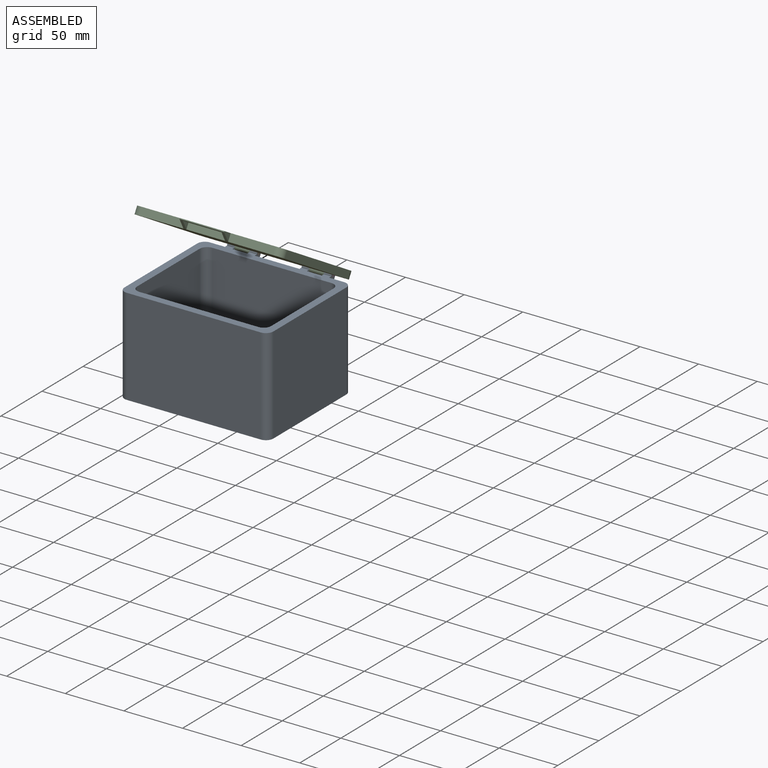
[diagram: assembled view]
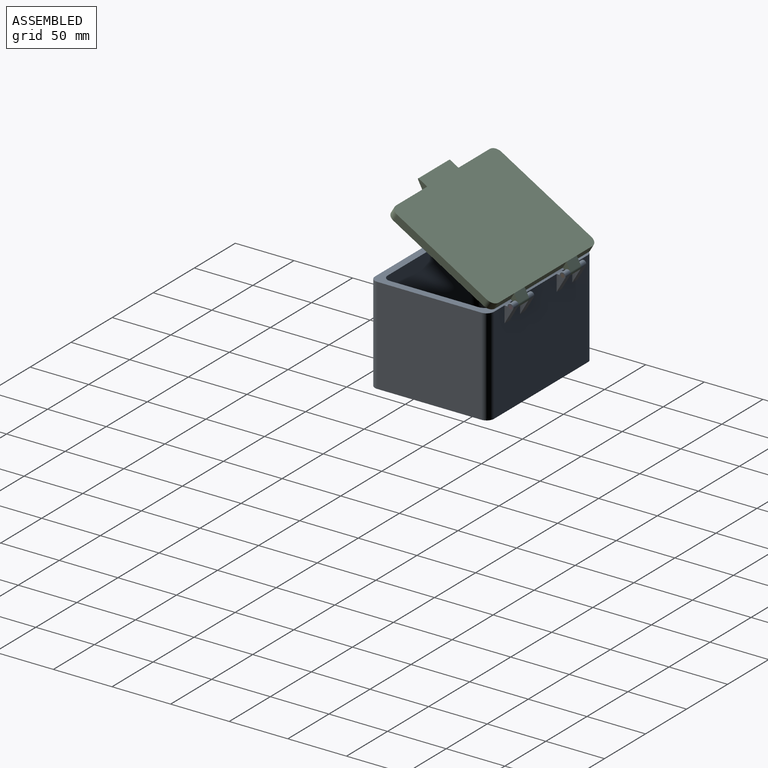
[diagram: assembled view, second angle]
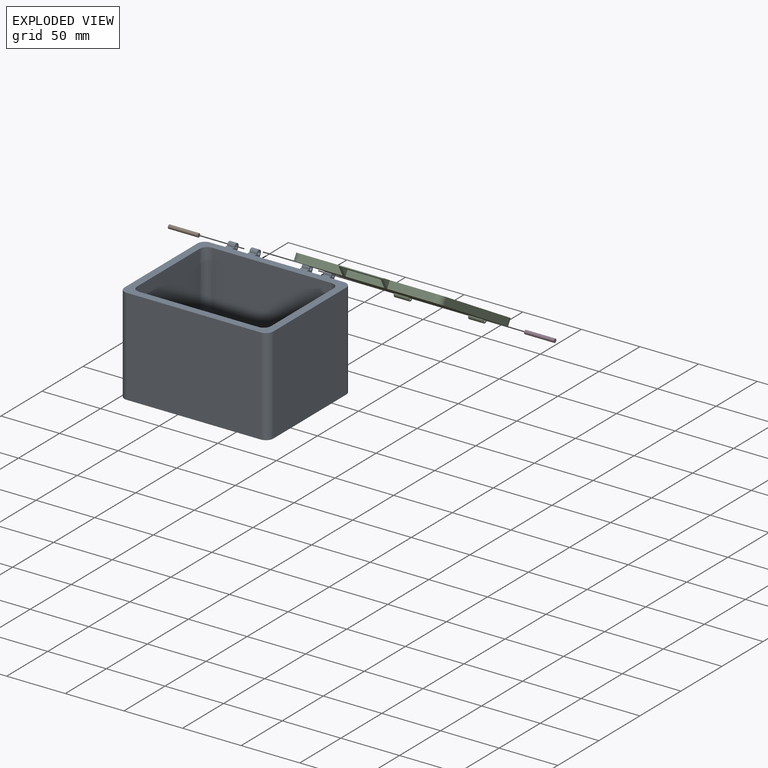
[diagram: exploded view]
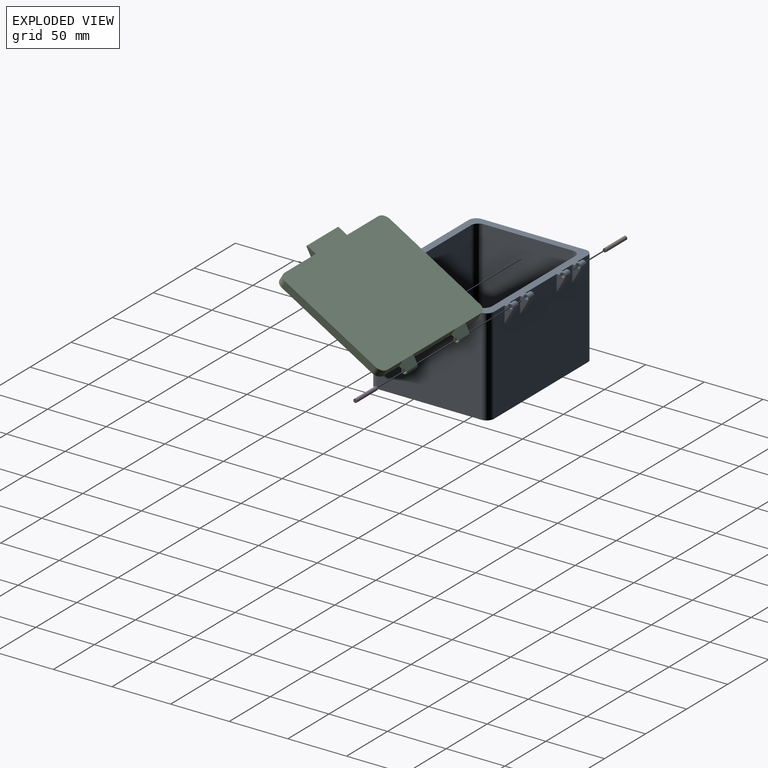
[diagram: exploded view, second angle]
ASSEMBLY  parts=4 mates=3
PART A: 39 faces, bbox 127x109.2x85.1 mm
  f0: plane 127x104.14mm, normal (0,0,1), area 2806.4mm2, adj f2,f4,f5,f6,f7,f8,f9,f11
  f1: plane 12.61x7.28mm, normal (0,0.87,-0.5), area 92.5mm2, adj f2,f4,f5,f6
  f2: cylinder r=2.54mm len=6.35mm, axis (-1,0,0), area 59.1mm2, adj f0,f1,f4,f5
  f3: cylinder r=1.59mm len=6.35mm, axis (-1,0,0), area 63.3mm2, adj f4,f5
  f4: plane 16.42x7.62mm, normal (1,0,0), area 57.6mm2, adj f0,f1,f2,f3,f6
  f5: plane 16.42x7.62mm, normal (-1,0,0), area 57.6mm2, adj f0,f1,f2,f3,f6
  f6: plane 114.3x82.55mm, normal (0,1,0), area 9082.9mm2, adj f0,f1,f4,f5,f10,f21,f22,f24
  f7: plane 114.3x82.55mm, normal (0,-1,0), area 9435.5mm2, adj f0,f10,f20,f23
  f8: plane 88.9x82.55mm, normal (1,0,0), area 7338.7mm2, adj f0,f10,f20,f21
  f9: plane 88.9x82.55mm, normal (-1,0,0), area 7338.7mm2, adj f0,f10,f22,f23
  f10: plane 127x101.6mm, normal (0,0,-1), area 12868.6mm2, adj f6,f7,f8,f9,f20,f21,f22,f23
  f11: plane 101.6x76.2mm, normal (0,1,0), area 7741.9mm2, adj f0,f15,f16,f19
  f12: plane 76.2x76.2mm, normal (1,0,0), area 5806.4mm2, adj f0,f15,f16,f17
  f13: plane 101.6x76.2mm, normal (0,-1,0), area 7741.9mm2, adj f0,f15,f17,f18
  f14: plane 76.2x76.2mm, normal (-1,0,0), area 5806.4mm2, adj f0,f15,f18,f19
  f15: plane 114.3x88.9mm, normal (0,0,1), area 10126.7mm2, adj f11,f12,f13,f14,f16,f17,f18,f19
  f16: cylinder r=6.35mm len=76.2mm, axis (0,0,1), area 760.1mm2, adj f0,f11,f12,f15
  f17: cylinder r=6.35mm len=76.2mm, axis (0,0,-1), area 760.1mm2, adj f0,f12,f13,f15
  f18: cylinder r=6.35mm len=76.2mm, axis (0,0,1), area 760.1mm2, adj f0,f13,f14,f15
  f19: cylinder r=6.35mm len=76.2mm, axis (0,0,-1), area 760.1mm2, adj f0,f11,f14,f15
  f20: cylinder r=6.35mm len=82.55mm, axis (0,0,-1), area 823.4mm2, adj f0,f7,f8,f10
  f21: cylinder r=6.35mm len=82.55mm, axis (0,0,1), area 823.4mm2, adj f0,f6,f8,f10
  f22: cylinder r=6.35mm len=82.55mm, axis (0,0,-1), area 823.4mm2, adj f0,f6,f9,f10
  f23: cylinder r=6.35mm len=82.55mm, axis (0,0,1), area 823.4mm2, adj f0,f7,f9,f10
  f24: plane 12.61x7.28mm, normal (0,0.87,-0.5), area 92.5mm2, adj f6,f25,f27,f28
  f25: cylinder r=2.54mm len=6.35mm, axis (1,0,0), area 59.1mm2, adj f0,f24,f27,f28
  f26: cylinder r=1.59mm len=6.35mm, axis (1,0,0), area 63.3mm2, adj f27,f28
  f27: plane 16.42x7.62mm, normal (-1,0,0), area 57.6mm2, adj f0,f6,f24,f25,f26
  f28: plane 16.42x7.62mm, normal (1,0,0), area 57.6mm2, adj f0,f6,f24,f25,f26
  f29: plane 12.61x7.28mm, normal (0,0.87,-0.5), area 92.5mm2, adj f6,f30,f32,f33
  f30: cylinder r=2.54mm len=6.35mm, axis (1,0,0), area 59.1mm2, adj f0,f29,f32,f33
  f31: cylinder r=1.59mm len=6.35mm, axis (1,0,0), area 63.3mm2, adj f32,f33
  f32: plane 16.42x7.62mm, normal (-1,0,0), area 57.6mm2, adj f0,f6,f29,f30,f31
  f33: plane 16.42x7.62mm, normal (1,0,0), area 57.6mm2, adj f0,f6,f29,f30,f31
  f34: plane 12.61x7.28mm, normal (0,0.87,-0.5), area 92.5mm2, adj f6,f35,f37,f38
  f35: cylinder r=2.54mm len=6.35mm, axis (-1,0,0), area 59.1mm2, adj f0,f34,f37,f38
  f36: cylinder r=1.59mm len=6.35mm, axis (-1,0,0), area 63.3mm2, adj f37,f38
  f37: plane 16.42x7.62mm, normal (1,0,0), area 57.6mm2, adj f0,f6,f34,f35,f36
  f38: plane 16.42x7.62mm, normal (-1,0,0), area 57.6mm2, adj f0,f6,f34,f35,f36
PART B: 3 faces, bbox 25.4x3.2x3.2 mm
  f0: plane 3.18x3.18mm, normal (1,0,0), area 7.9mm2, adj f1
  f1: cylinder r=1.59mm len=25.4mm, axis (-1,0,0), area 253.4mm2, adj f0,f2
  f2: plane 3.18x3.18mm, normal (-1,0,0), area 7.9mm2, adj f1
PART C: 31 faces, bbox 127x118.1x8.9 mm
  f0: plane 38.1x6.35mm, normal (0,-1,0), area 241.9mm2, adj f1,f18,f20,f25
  f1: plane 127x104.14mm, normal (0,0,-1), area 12933.1mm2, adj f0,f2,f5,f6,f7,f8,f11,f12
  f2: cylinder r=2.54mm len=12.7mm, axis (-1,0,0), area 133.4mm2, adj f1,f3,f5,f6
  f3: plane 12.7x6.47mm, normal (0,0.55,0.84), area 98.1mm2, adj f2,f5,f6,f18
  f4: cylinder r=1.59mm len=12.7mm, axis (-1,0,0), area 126.7mm2, adj f5,f6
  f5: plane 8.89x7.62mm, normal (-1,0,0), area 31.4mm2, adj f1,f2,f3,f4,f7
  f6: plane 8.89x7.62mm, normal (1,0,0), area 31.4mm2, adj f1,f2,f3,f4,f16
  f7: plane 19.05x6.35mm, normal (0,1,0), area 121mm2, adj f1,f5,f18,f22
  f8: cylinder r=2.54mm len=12.7mm, axis (1,0,0), area 133.4mm2, adj f1,f9,f11,f12
  f9: plane 12.7x6.47mm, normal (0,0.55,0.84), area 98.1mm2, adj f8,f11,f12,f18
  f10: cylinder r=1.59mm len=12.7mm, axis (1,0,0), area 126.7mm2, adj f11,f12
  f11: plane 8.89x7.62mm, normal (1,0,0), area 31.4mm2, adj f1,f8,f9,f10,f13
  f12: plane 8.89x7.62mm, normal (-1,0,0), area 31.4mm2, adj f1,f8,f9,f10,f16
  f13: plane 19.05x6.35mm, normal (0,1,0), area 121mm2, adj f1,f11,f18,f21
  f14: plane 38.1x6.35mm, normal (0,-1,0), area 241.9mm2, adj f1,f18,f19,f24
  f15: plane 88.9x6.35mm, normal (1,0,0), area 564.5mm2, adj f1,f18,f19,f21
  f16: plane 50.8x6.35mm, normal (0,1,0), area 322.6mm2, adj f1,f6,f12,f18
  f17: plane 88.9x6.35mm, normal (-1,0,0), area 564.5mm2, adj f1,f18,f20,f22
  f18: plane 127x109.99mm, normal (0,0,1), area 13188.2mm2, adj f0,f3,f7,f9,f13,f14,f15,f16
  f19: cylinder r=6.35mm len=6.35mm, axis (0,0,1), area 63.3mm2, adj f1,f14,f15,f18
  f20: cylinder r=6.35mm len=6.35mm, axis (0,0,-1), area 63.3mm2, adj f0,f1,f17,f18
  f21: cylinder r=6.35mm len=6.35mm, axis (0,0,-1), area 63.3mm2, adj f1,f13,f15,f18
  f22: cylinder r=6.35mm len=6.35mm, axis (0,0,1), area 63.3mm2, adj f1,f7,f17,f18
  f23: plane 38.1x8.66mm, normal (0,-0.53,-0.85), area 72.5mm2, adj f1,f24,f25,f27,f28,f29,f30
  f24: plane 8.9x6.35mm, normal (1,0,0), area 31.7mm2, adj f14,f18,f23,f30
  f25: plane 8.9x6.35mm, normal (-1,0,0), area 31.7mm2, adj f0,f18,f23,f30
  f26: plane 33.02x5.08mm, normal (0,-1,0), area 167.7mm2, adj f1,f27,f28,f29
  f27: plane 33.02x8.13mm, normal (0,0,-1), area 268.4mm2, adj f23,f26,f28,f29
  f28: plane 8.13x5.08mm, normal (1,0,0), area 20.6mm2, adj f23,f26,f27
  f29: plane 8.13x5.08mm, normal (-1,0,0), area 20.6mm2, adj f23,f26,f27
  f30: cylinder r=0.51mm len=38.1mm, axis (-1,0,0), area 50mm2, adj f18,f23,f24,f25
PART D: same geometry as B
PLACE A at identity fixed
PLACE B t=(-63.5,0,0)mm
PLACE C rot(axis=(-1,0,0),30.4deg) t=(0,-30.9,38.81)mm
PLACE D at identity
MATE revolute B.f1 <-> A.f2  axis (1,0,0) through (-19.05,55.88,76.2)mm
MATE revolute D.f1 <-> A.f2  axis (1,0,0) through (44.45,55.88,76.2)mm
MATE revolute C.f2 <-> A.f2  axis (-1,0,0) through (25.4,55.88,76.2)mm
